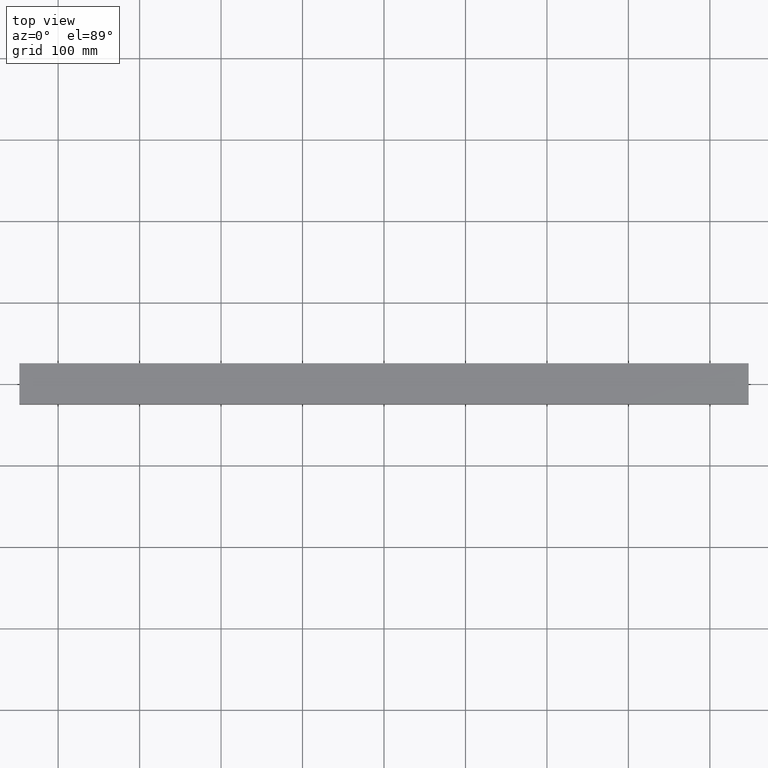
[diagram: clean part render]
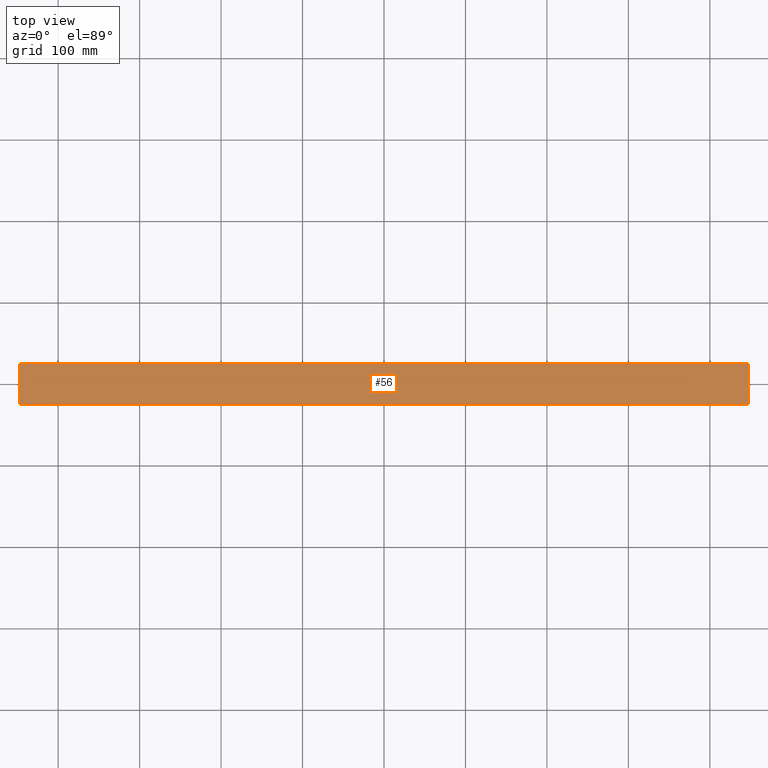
[diagram: same view with one face highlighted and labeled with its STEP entity id]
A machine part, top view. The second image highlights one B-rep face of the part: STEP entity #56.
In plain terms, the highlighted planar face has unit normal (-0, 0, 1).
Its self-contained STEP definition (entity closure, byte-faithful):
#29 = CARTESIAN_POINT ( 'NONE',  ( -447.5000000000000000, 25.00000000000000711, 24.99999999999991829 ) ) ;
#56 = ADVANCED_FACE ( 'NONE', ( #163 ), #272, .T. ) ;
#57 = CARTESIAN_POINT ( 'NONE',  ( -447.5000000000000000, 25.00000000000000711, 24.99999999999991829 ) ) ;
#76 = DIRECTION ( 'NONE',  ( 0.000000000000000000, -1.000000000000000000, 3.816391647148972452E-15 ) ) ;
#80 = DIRECTION ( 'NONE',  ( 1.000000000000000000, 3.061616997868382648E-16, -0.000000000000000000 ) ) ;
#88 = VECTOR ( 'NONE', #284, 1000.000000000000000 ) ;
#90 = VERTEX_POINT ( 'NONE', #184 ) ;
#96 = DIRECTION ( 'NONE',  ( 0.000000000000000000, -1.000000000000000000, 3.816391647148972452E-15 ) ) ;
#106 = VECTOR ( 'NONE', #80, 1000.000000000000000 ) ;
#109 = DIRECTION ( 'NONE',  ( 1.000000000000000000, 3.061616997868382648E-16, -0.000000000000000000 ) ) ;
#128 = VERTEX_POINT ( 'NONE', #139 ) ;
#129 = AXIS2_PLACEMENT_3D ( 'NONE', #216, #246, #96 ) ;
#138 = CARTESIAN_POINT ( 'NONE',  ( -447.5000000000000000, -25.00000000000003553, 25.00000000000011013 ) ) ;
#139 = CARTESIAN_POINT ( 'NONE',  ( 447.5000000000000000, 25.00000000000028066, 24.99999999999991829 ) ) ;
#149 = ORIENTED_EDGE ( 'NONE', *, *, #370, .T. ) ;
#153 = ORIENTED_EDGE ( 'NONE', *, *, #237, .F. ) ;
#163 = FACE_OUTER_BOUND ( 'NONE', #259, .T. ) ;
#171 = CARTESIAN_POINT ( 'NONE',  ( -447.5000000000000000, -25.00000000000003553, 25.00000000000011013 ) ) ;
#182 = EDGE_CURVE ( 'NONE', #128, #90, #281, .T. ) ;
#184 = CARTESIAN_POINT ( 'NONE',  ( 447.5000000000000000, -24.99999999999976197, 25.00000000000011013 ) ) ;
#194 = EDGE_CURVE ( 'NONE', #261, #90, #315, .T. ) ;
#195 = CARTESIAN_POINT ( 'NONE',  ( -447.5000000000000000, 25.00000000000000711, 24.99999999999991829 ) ) ;
#196 = LINE ( 'NONE', #195, #204 ) ;
#200 = ORIENTED_EDGE ( 'NONE', *, *, #194, .T. ) ;
#204 = VECTOR ( 'NONE', #109, 1000.000000000000000 ) ;
#216 = CARTESIAN_POINT ( 'NONE',  ( -447.5000000000000000, 25.00000000000000711, 24.99999999999991829 ) ) ;
#226 = VECTOR ( 'NONE', #76, 1000.000000000000000 ) ;
#237 = EDGE_CURVE ( 'NONE', #319, #128, #196, .T. ) ;
#246 = DIRECTION ( 'NONE',  ( -1.168432953743420880E-30, 3.816391647148972452E-15, 1.000000000000000000 ) ) ;
#259 = EDGE_LOOP ( 'NONE', ( #350, #153, #149, #200 ) ) ;
#261 = VERTEX_POINT ( 'NONE', #171 ) ;
#272 = PLANE ( 'NONE',  #129 ) ;
#281 = LINE ( 'NONE', #313, #226 ) ;
#284 = DIRECTION ( 'NONE',  ( 0.000000000000000000, -1.000000000000000000, 3.816391647148972452E-15 ) ) ;
#313 = CARTESIAN_POINT ( 'NONE',  ( 447.5000000000000000, 25.00000000000028066, 24.99999999999991829 ) ) ;
#315 = LINE ( 'NONE', #138, #106 ) ;
#318 = LINE ( 'NONE', #29, #88 ) ;
#319 = VERTEX_POINT ( 'NONE', #57 ) ;
#350 = ORIENTED_EDGE ( 'NONE', *, *, #182, .F. ) ;
#370 = EDGE_CURVE ( 'NONE', #319, #261, #318, .T. ) ;